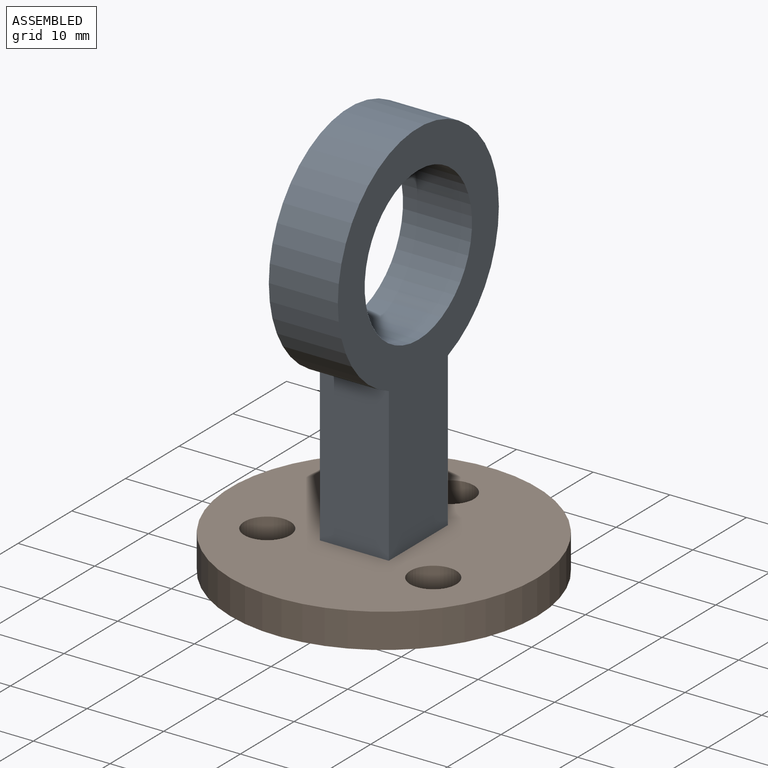
[diagram: assembled view]
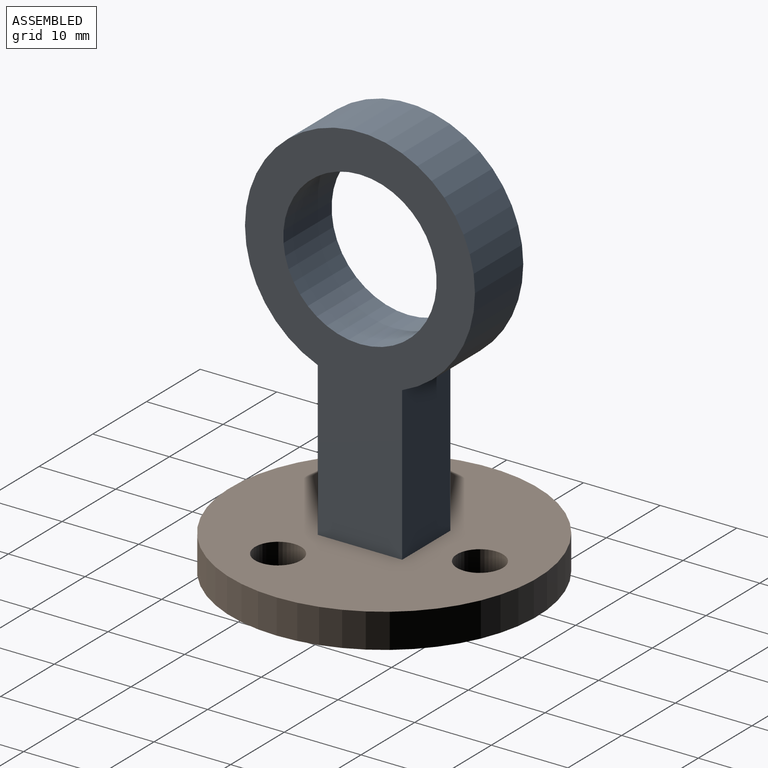
[diagram: assembled view, second angle]
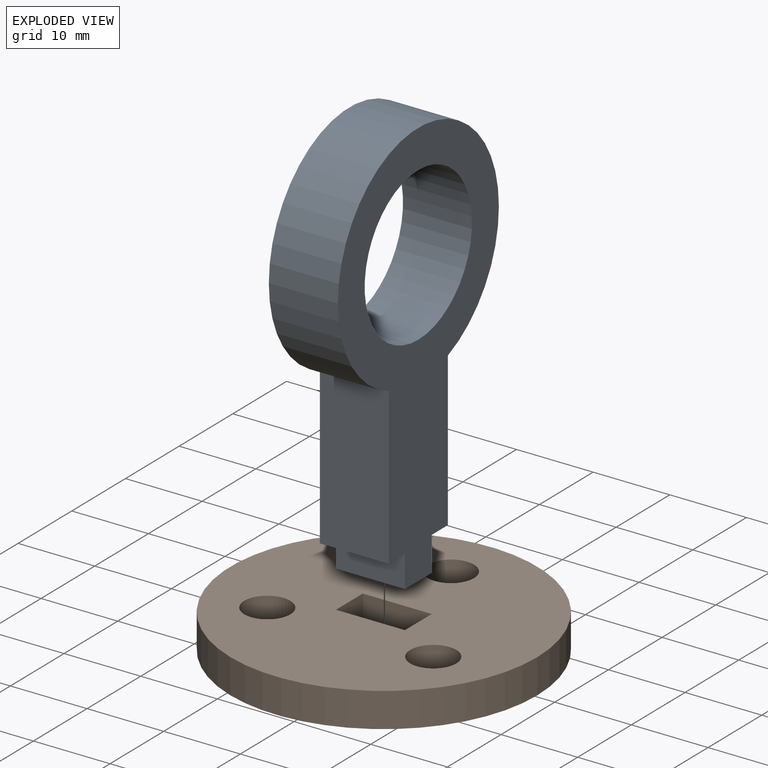
[diagram: exploded view]
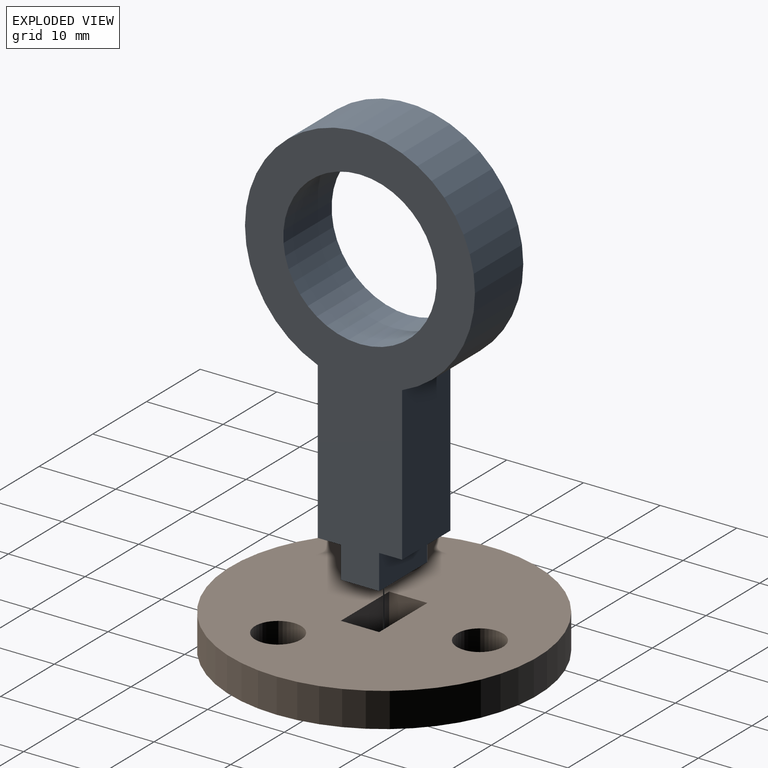
[diagram: exploded view, second angle]
ASSEMBLY  parts=2 mates=2
PART A: 11 faces, bbox 30x9x53.5 mm
  f0: plane 9x4.5mm, normal (-1,0,0), area 40.5mm2, adj f1,f7,f9,f10
  f1: plane 9x5mm, normal (0,0,-1), area 45mm2, adj f0,f2,f9,f10
  f2: plane 9x4.13mm, normal (1,0,0), area 37.2mm2, adj f1,f3,f9,f10
  f3: plane 9x3mm, normal (0,0,-1), area 27mm2, adj f2,f4,f9,f10
  f4: plane 20.37x9mm, normal (1,0,0), area 183.3mm2, adj f3,f5,f9,f10
  f5: cylinder r=15mm len=30mm, axis (0,1,0), area 746.9mm2, adj f4,f6,f9,f10
  f6: plane 20x9mm, normal (-1,0,0), area 180mm2, adj f5,f7,f9,f10
  f7: plane 9x3mm, normal (0,0,-1), area 27mm2, adj f0,f6,f9,f10
  f8: cylinder r=10mm len=20mm, axis (0,1,0), area 565.5mm2, adj f9,f10
  f9: plane 53.46x30mm, normal (0,-1,0), area 628.6mm2, adj f0,f1,f2,f3,f4,f5,f6,f7
  f10: plane 53.46x30mm, normal (0,1,0), area 628.6mm2, adj f0,f1,f2,f3,f4,f5,f6,f7
PART B: 10 faces, bbox 40x40x4.5 mm
  f0: plane 5x4.5mm, normal (-1,0,0), area 22.5mm2, adj f1,f6,f8,f9
  f1: plane 9x4.5mm, normal (0,1,0), area 40.5mm2, adj f0,f2,f8,f9
  f2: plane 5x4.5mm, normal (1,0,0), area 22.5mm2, adj f1,f6,f8,f9
  f3: cylinder r=3mm len=6mm, axis (0,0,-1), area 84.8mm2, adj f8,f9
  f4: cylinder r=3mm len=6mm, axis (0,0,-1), area 84.8mm2, adj f8,f9
  f5: cylinder r=3mm len=6mm, axis (0,0,-1), area 84.8mm2, adj f8,f9
  f6: plane 9x4.5mm, normal (0,-1,0), area 40.5mm2, adj f0,f2,f8,f9
  f7: cylinder r=20mm len=40mm, axis (0,0,-1), area 565.5mm2, adj f8,f9
  f8: plane 40x40mm, normal (0,0,1), area 1126.8mm2, adj f0,f1,f2,f3,f4,f5,f6,f7
  f9: plane 40x40mm, normal (0,0,-1), area 1126.8mm2, adj f0,f1,f2,f3,f4,f5,f6,f7
PLACE A rot(axis=(0,0,-1),90deg) t=(13.43,0.77,-12.58)mm
PLACE B t=(8.93,-1.73,-12.58)mm
MATE planar A.f1 <-> B.f7  axis (0,0,-1) through (8.93,-1.73,-12.58)mm
MATE planar A.f2 <-> B.f1  axis (0,-1,0) through (8.93,-4.23,-10.51)mm
